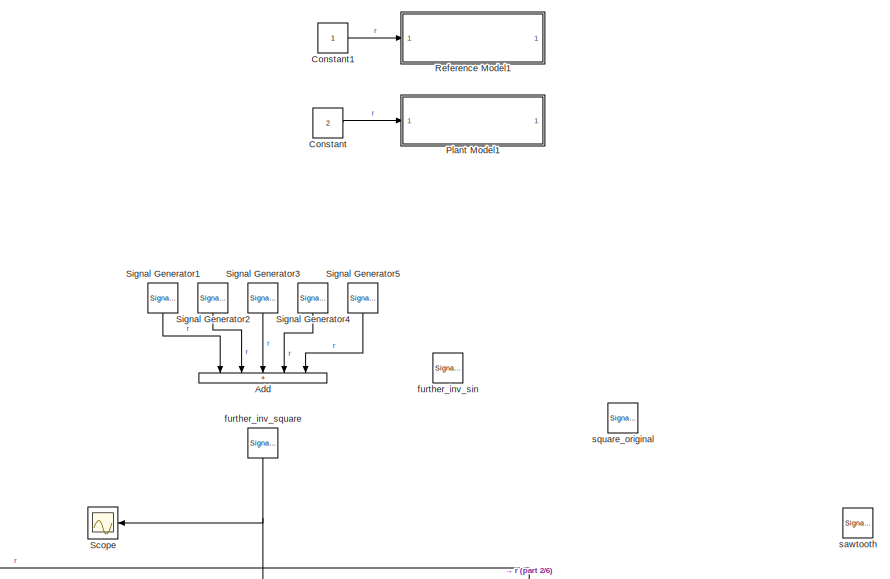
[diagram: root canvas - part 1/6, top left region]
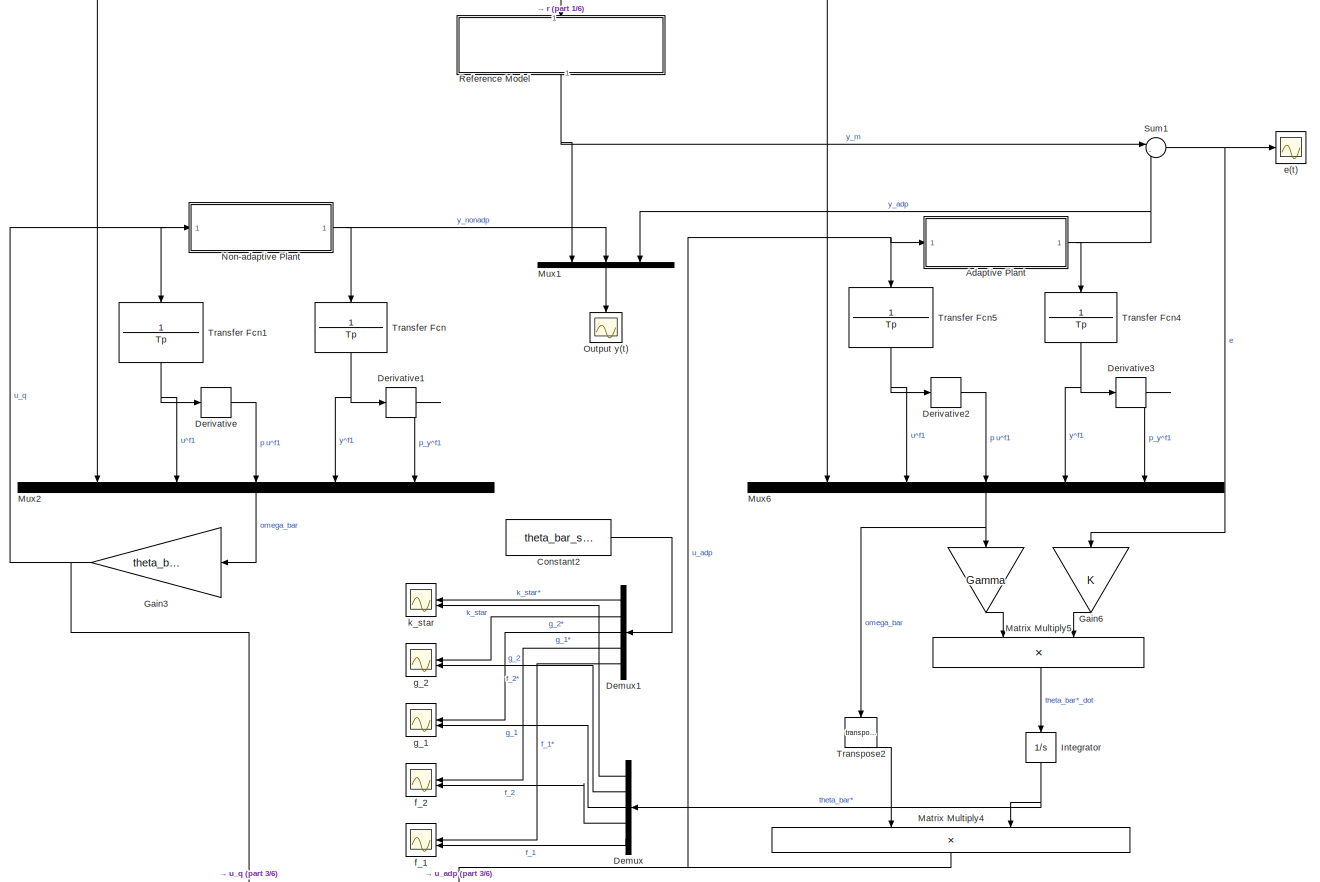
[diagram: root canvas - part 2/6, top left region]
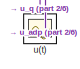
[diagram: root canvas - part 3/6, middle left region]
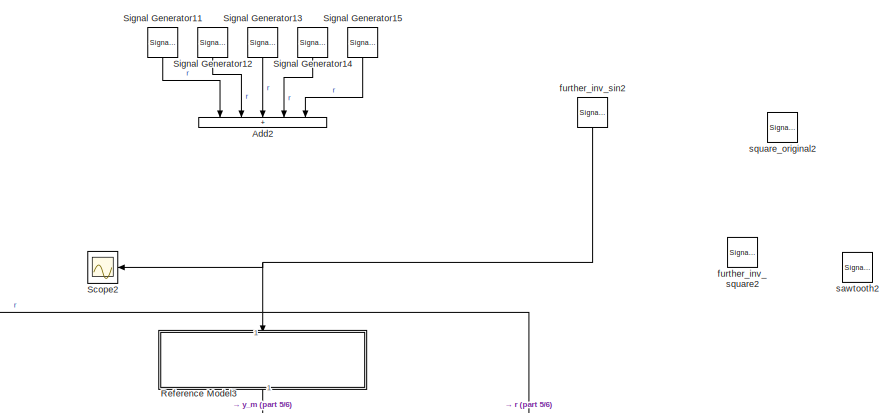
[diagram: root canvas - part 4/6, middle right region]
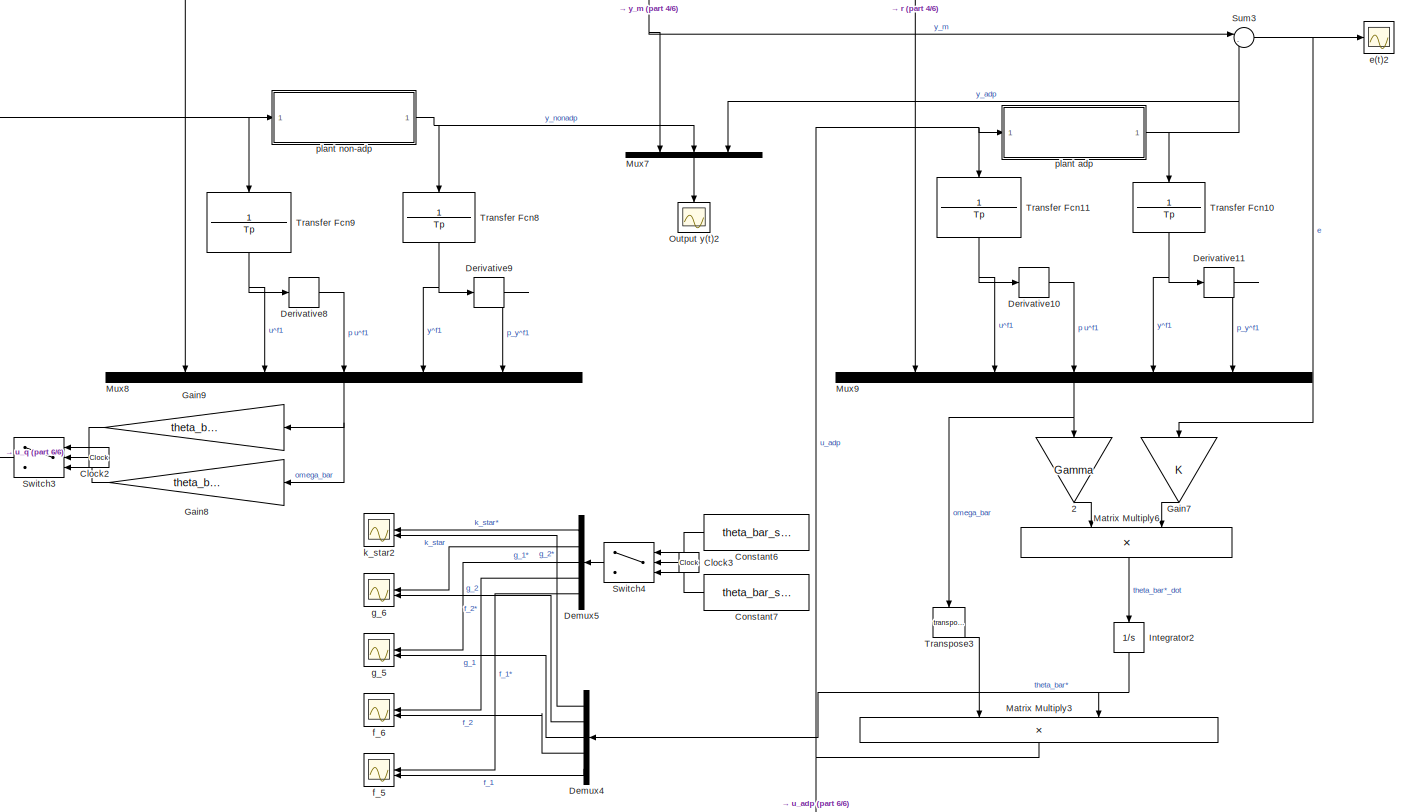
[diagram: root canvas - part 5/6, bottom right region]
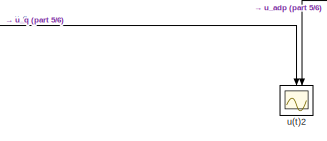
[diagram: root canvas - part 6/6, bottom center region]
MODEL slx_bb5ae10be6ac
KIND model
CONFIG AbsTol = auto
CONFIG EnableMultiTasking = off
CONFIG FixedStep = auto
CONFIG MaxStep = auto
CONFIG MinStep = auto
CONFIG RelTol = 1e-3
CONFIG SampleTimeConstraint = Unconstrained
CONFIG SolverName = VariableStepAuto
CONFIG StartTime = 0.0
CONFIG StopTime = 400
BLOCK [Gain]  
  Commented = on
  Gain = Gamma
  Multiplication = Matrix(K*u)
  NameLocation = left
BLOCK [Gain]  2
  Gain = Gamma
  Multiplication = Matrix(K*u)
  NameLocation = left
BLOCK [ModelReference] Adaptive Plant
  Commented = on
  ModelNameDialog = plant_adaptive.slx
  ModelReferenceVersion = 2.0
BLOCK [Sum] Add
  Commented = on
  IconShape = rectangular
  Inputs = +++++
  NameLocation = left
BLOCK [Sum] Add2
  IconShape = rectangular
  Inputs = +++++
  NameLocation = left
BLOCK [Clock] Clock2
  NameLocation = top
BLOCK [Clock] Clock3
  NameLocation = top
BLOCK [Constant] Constant
  Commented = on
  Value = 2
BLOCK [Constant] Constant1
  Commented = on
BLOCK [Constant] Constant2
  Commented = on
  Value = theta_bar_star
BLOCK [Constant] Constant6
  NameLocation = top
  Value = theta_bar_star_new
BLOCK [Constant] Constant7
  NameLocation = top
  Value = theta_bar_star
BLOCK [Demux] Demux
  Commented = on
  NameLocation = top
  Outputs = 5
BLOCK [Demux] Demux1
  Commented = on
  NameLocation = top
  Outputs = 5
BLOCK [Demux] Demux4
  NameLocation = top
  Outputs = 5
BLOCK [Demux] Demux5
  NameLocation = top
  Outputs = 5
BLOCK [Derivative] Derivative
  Commented = on
BLOCK [Derivative] Derivative1
  Commented = on
BLOCK [Derivative] Derivative10
BLOCK [Derivative] Derivative11
BLOCK [Derivative] Derivative2
  Commented = on
BLOCK [Derivative] Derivative3
  Commented = on
BLOCK [Derivative] Derivative8
BLOCK [Derivative] Derivative9
BLOCK [Gain] Gain3
  Commented = on
  Gain = theta_bar_star
  Multiplication = Matrix(K*u) (u vector)
  NameLocation = top
BLOCK [Gain] Gain6
  Commented = on
  NameLocation = left
BLOCK [Gain] Gain7
  NameLocation = left
BLOCK [Gain] Gain8
  Gain = theta_bar_star
  Multiplication = Matrix(K*u) (u vector)
  NameLocation = top
BLOCK [Gain] Gain9
  Gain = theta_bar_star_new
  Multiplication = Matrix(K*u) (u vector)
  NameLocation = top
BLOCK [Integrator] Integrator
  Commented = on
  NameLocation = left
BLOCK [Integrator] Integrator2
  NameLocation = left
BLOCK [Product] Matrix Multiply3
  Multiplication = Matrix(*)
  NameLocation = left
BLOCK [Product] Matrix Multiply4
  Commented = on
  Multiplication = Matrix(*)
  NameLocation = left
BLOCK [Product] Matrix Multiply5
  Commented = on
  Multiplication = Matrix(*)
  NameLocation = left
BLOCK [Product] Matrix Multiply6
  Multiplication = Matrix(*)
  NameLocation = left
BLOCK [Mux] Mux1
  Commented = on
  DisplayOption = bar
  Inputs = 3
  NameLocation = left
BLOCK [Mux] Mux2
  Commented = on
  DisplayOption = bar
  Inputs = 5
  NameLocation = left
BLOCK [Mux] Mux6
  Commented = on
  DisplayOption = bar
  Inputs = 5
  NameLocation = left
BLOCK [Mux] Mux7
  DisplayOption = bar
  Inputs = 3
  NameLocation = left
BLOCK [Mux] Mux8
  DisplayOption = bar
  Inputs = 5
  NameLocation = left
BLOCK [Mux] Mux9
  DisplayOption = bar
  Inputs = 5
  NameLocation = left
BLOCK [ModelReference] Non-adaptive Plant
  Commented = on
  ModelNameDialog = plant_nonadaptive.slx
  ModelReferenceVersion = 1.4
BLOCK [Scope] Output y(t)
  Commented = on
  Floating = off
  NameLocation = left
  NumInputPorts = 1
  ScopeSpecificationString = Simulink.scopes.TimeScopeBlockCfg('CurrentConfiguration', extmgr.ConfigurationSet(extmgr.Configuration('Core','General UI',true),extmgr.Configuration('Core','Source UI',true),extmgr.Configuration('Sources','WiredSimulink',true,'DataLoggingVariableName','ScopeData1'),extmgr.Configuration('Visuals','Time Domain',true,'SerializedDisplays',{struct('MinYLimReal','-12.5252','MaxYLimReal','12.54426','YLa...<+1632ch>
BLOCK [Scope] Output y(t)2
  Floating = off
  NameLocation = left
  NumInputPorts = 1
  ScopeSpecificationString = Simulink.scopes.TimeScopeBlockCfg('CurrentConfiguration', extmgr.ConfigurationSet(extmgr.Configuration('Core','General UI',true),extmgr.Configuration('Core','Source UI',true),extmgr.Configuration('Sources','WiredSimulink',true,'DataLoggingVariableName','ScopeData1'),extmgr.Configuration('Visuals','Time Domain',true,'SerializedDisplays',{struct('MinYLimReal','-1183.46372','MaxYLimReal','1068.27295'...<+1962ch>
BLOCK [ModelReference] Plant Model1
  Commented = on
  ModelNameDialog = plant_model.slx
  ModelReferenceVersion = 1.14
BLOCK [ModelReference] Reference Model
  Commented = on
  ModelNameDialog = reference_model.slx
  ModelReferenceVersion = 1.13
  NameLocation = left
BLOCK [ModelReference] Reference Model1
  Commented = on
  ModelNameDialog = reference_model.slx
  ModelReferenceVersion = 1.13
BLOCK [ModelReference] Reference Model3
  ModelNameDialog = reference_model.slx
  ModelReferenceVersion = 1.13
  NameLocation = left
BLOCK [Scope] Scope
  Commented = on
  Floating = off
  NameLocation = top
  NumInputPorts = 1
  ScopeSpecificationString = Simulink.scopes.TimeScopeBlockCfg('CurrentConfiguration', extmgr.ConfigurationSet(extmgr.Configuration('Core','General UI',true),extmgr.Configuration('Core','Source UI',true),extmgr.Configuration('Sources','WiredSimulink',true,'DataLoggingVariableName','ScopeData2'),extmgr.Configuration('Visuals','Time Domain',true,'SerializedDisplays',{struct('MinYLimReal','-1.25','MaxYLimReal','1.25','YLabelReal...<+1506ch>
BLOCK [Scope] Scope2
  Floating = off
  NameLocation = top
  NumInputPorts = 1
  ScopeSpecificationString = Simulink.scopes.TimeScopeBlockCfg('CurrentConfiguration', extmgr.ConfigurationSet(extmgr.Configuration('Core','General UI',true),extmgr.Configuration('Core','Source UI',true),extmgr.Configuration('Sources','WiredSimulink',true,'DataLoggingVariableName','ScopeData2'),extmgr.Configuration('Visuals','Time Domain',true,'SerializedDisplays',{struct('MinYLimReal','-1.25','MaxYLimReal','1.25','YLabelReal...<+1506ch>
BLOCK [SignalGenerator] Signal Generator1
  Commented = on
  NameLocation = left
  Units = rad/sec
BLOCK [SignalGenerator] Signal Generator11
  NameLocation = left
  Units = rad/sec
BLOCK [SignalGenerator] Signal Generator12
  Amplitude = 2
  Frequency = 0.5
  NameLocation = left
  Units = rad/sec
BLOCK [SignalGenerator] Signal Generator13
  Amplitude = 3
  Frequency = 1.5
  Units = rad/sec
BLOCK [SignalGenerator] Signal Generator14
  Amplitude = 4
  Frequency = 2
  NameLocation = left
  Units = rad/sec
BLOCK [SignalGenerator] Signal Generator15
  Amplitude = 5
  Frequency = 0.25
  NameLocation = left
  Units = rad/sec
BLOCK [SignalGenerator] Signal Generator2
  Amplitude = 2
  Commented = on
  Frequency = 0.5
  NameLocation = left
  Units = rad/sec
BLOCK [SignalGenerator] Signal Generator3
  Amplitude = 3
  Commented = on
  Frequency = 1.5
  Units = rad/sec
BLOCK [SignalGenerator] Signal Generator4
  Amplitude = 4
  Commented = on
  Frequency = 2
  NameLocation = left
  Units = rad/sec
BLOCK [SignalGenerator] Signal Generator5
  Amplitude = 5
  Commented = on
  Frequency = 0.25
  NameLocation = left
  Units = rad/sec
BLOCK [Sum] Sum1
  Commented = on
  Inputs = |-+
BLOCK [Sum] Sum3
  Inputs = |-+
BLOCK [Switch] Switch3
  InputSameDT = off
  NameLocation = top
  SaturateOnIntegerOverflow = off
  Threshold = 100
BLOCK [Switch] Switch4
  InputSameDT = off
  NameLocation = top
  SaturateOnIntegerOverflow = off
  Threshold = 100
BLOCK [TransferFcn] Transfer Fcn
  Commented = on
  Denominator = Tp
  NameLocation = left
  Numerator = 1
BLOCK [TransferFcn] Transfer Fcn1
  Commented = on
  Denominator = Tp
  NameLocation = left
  Numerator = 1
BLOCK [TransferFcn] Transfer Fcn10
  Denominator = Tp
  NameLocation = left
  Numerator = 1
BLOCK [TransferFcn] Transfer Fcn11
  Denominator = Tp
  NameLocation = left
  Numerator = 1
BLOCK [TransferFcn] Transfer Fcn4
  Commented = on
  Denominator = Tp
  NameLocation = left
  Numerator = 1
BLOCK [TransferFcn] Transfer Fcn5
  Commented = on
  Denominator = Tp
  NameLocation = left
  Numerator = 1
BLOCK [TransferFcn] Transfer Fcn8
  Denominator = Tp
  NameLocation = left
  Numerator = 1
BLOCK [TransferFcn] Transfer Fcn9
  Denominator = Tp
  NameLocation = left
  Numerator = 1
BLOCK [Math] Transpose2
  Commented = on
  NameLocation = left
  Operator = transpose
BLOCK [Math] Transpose3
  NameLocation = left
  Operator = transpose
BLOCK [Scope] e(t)
  Commented = on
  Floating = off
  NumInputPorts = 1
  ScopeSpecificationString = Simulink.scopes.TimeScopeBlockCfg('CurrentConfiguration', extmgr.ConfigurationSet(extmgr.Configuration('Core','General UI',true),extmgr.Configuration('Core','Source UI',true),extmgr.Configuration('Sources','WiredSimulink',true,'DataLoggingVariableName','ScopeData2'),extmgr.Configuration('Visuals','Time Domain',true,'SerializedDisplays',{struct('MinYLimReal','-0.15809','MaxYLimReal','0.16153','YLab...<+1493ch>
BLOCK [Scope] e(t)2
  Floating = off
  NumInputPorts = 1
  ScopeSpecificationString = Simulink.scopes.TimeScopeBlockCfg('CurrentConfiguration', extmgr.ConfigurationSet(extmgr.Configuration('Core','General UI',true),extmgr.Configuration('Core','Source UI',true),extmgr.Configuration('Sources','WiredSimulink',true,'DataLoggingVariableName','ScopeData3'),extmgr.Configuration('Visuals','Time Domain',true,'SerializedDisplays',{struct('MinYLimReal','-24.12609','MaxYLimReal','19.38304','YL...<+1525ch>
BLOCK [Scope] f_1
  Commented = on
  Floating = off
  NameLocation = top
  NumInputPorts = 2
  ScopeSpecificationString = Simulink.scopes.TimeScopeBlockCfg('CurrentConfiguration', extmgr.ConfigurationSet(extmgr.Configuration('Core','General UI',true),extmgr.Configuration('Core','Source UI',true),extmgr.Configuration('Sources','WiredSimulink',true,'DataLoggingVariableName','ScopeData9'),extmgr.Configuration('Visuals','Time Domain',true,'SerializedDisplays',{struct('MinYLimReal','-4.88886','MaxYLimReal','2.30008','YLab...<+1483ch>
BLOCK [Scope] f_2
  Commented = on
  Floating = off
  NameLocation = top
  NumInputPorts = 2
  ScopeSpecificationString = Simulink.scopes.TimeScopeBlockCfg('CurrentConfiguration', extmgr.ConfigurationSet(extmgr.Configuration('Core','General UI',true),extmgr.Configuration('Core','Source UI',true),extmgr.Configuration('Sources','WiredSimulink',true,'DataLoggingVariableName','ScopeData8'),extmgr.Configuration('Visuals','Time Domain',true,'SerializedDisplays',{struct('MinYLimReal','-1.62554','MaxYLimReal','4.23164','YLab...<+1483ch>
BLOCK [Scope] f_5
  Floating = off
  NameLocation = top
  NumInputPorts = 2
  ScopeSpecificationString = Simulink.scopes.TimeScopeBlockCfg('CurrentConfiguration', extmgr.ConfigurationSet(extmgr.Configuration('Core','General UI',true),extmgr.Configuration('Core','Source UI',true),extmgr.Configuration('Sources','WiredSimulink',true,'DataLoggingVariableName','ScopeData4'),extmgr.Configuration('Visuals','Time Domain',true,'SerializedDisplays',{struct('MinYLimReal','-121.00289','MaxYLimReal','209.11143','...<+1774ch>
BLOCK [Scope] f_6
  Floating = off
  NameLocation = top
  NumInputPorts = 2
  ScopeSpecificationString = Simulink.scopes.TimeScopeBlockCfg('CurrentConfiguration', extmgr.ConfigurationSet(extmgr.Configuration('Core','General UI',true),extmgr.Configuration('Core','Source UI',true),extmgr.Configuration('Sources','WiredSimulink',true,'DataLoggingVariableName','ScopeData5'),extmgr.Configuration('Visuals','Time Domain',true,'SerializedDisplays',{struct('MinYLimReal','-9.27529','MaxYLimReal','82.08009','YLa...<+1764ch>
BLOCK [SignalGenerator] further_inv_sin
  Amplitude = 10
  Commented = on
  Frequency = 0.5
  NameLocation = left
  Units = rad/sec
BLOCK [SignalGenerator] further_inv_sin2
  Amplitude = 10
  Frequency = 0.5
  NameLocation = left
  Units = rad/sec
BLOCK [SignalGenerator] further_inv_square
  Amplitude = 10
  Commented = on
  Frequency = 0.5
  NameLocation = left
  Units = rad/sec
  WaveForm = square
BLOCK [SignalGenerator] further_inv_square2
  Amplitude = 10
  Frequency = 0.5
  NameLocation = left
  Units = rad/sec
  WaveForm = square
BLOCK [Scope] g_1
  Commented = on
  Floating = off
  NameLocation = top
  NumInputPorts = 2
  ScopeSpecificationString = Simulink.scopes.TimeScopeBlockCfg('CurrentConfiguration', extmgr.ConfigurationSet(extmgr.Configuration('Core','General UI',true),extmgr.Configuration('Core','Source UI',true),extmgr.Configuration('Sources','WiredSimulink',true,'DataLoggingVariableName','ScopeData7'),extmgr.Configuration('Visuals','Time Domain',true,'SerializedDisplays',{struct('MinYLimReal','-8.86199','MaxYLimReal','1.99977','YLab...<+1528ch>
BLOCK [Scope] g_2
  Commented = on
  Floating = off
  NameLocation = top
  NumInputPorts = 2
  ScopeSpecificationString = Simulink.scopes.TimeScopeBlockCfg('CurrentConfiguration', extmgr.ConfigurationSet(extmgr.Configuration('Core','General UI',true),extmgr.Configuration('Core','Source UI',true),extmgr.Configuration('Sources','WiredSimulink',true,'DataLoggingVariableName','ScopeData6'),extmgr.Configuration('Visuals','Time Domain',true,'SerializedDisplays',{struct('MinYLimReal','-3.34149','MaxYLimReal','3.11944','YLab...<+1483ch>
BLOCK [Scope] g_5
  Floating = off
  NameLocation = top
  NumInputPorts = 2
  ScopeSpecificationString = Simulink.scopes.TimeScopeBlockCfg('CurrentConfiguration', extmgr.ConfigurationSet(extmgr.Configuration('Core','General UI',true),extmgr.Configuration('Core','Source UI',true),extmgr.Configuration('Sources','WiredSimulink',true,'DataLoggingVariableName','ScopeData6'),extmgr.Configuration('Visuals','Time Domain',true,'SerializedDisplays',{struct('MinYLimReal','-470.76499','MaxYLimReal','386.04657','...<+1774ch>
BLOCK [Scope] g_6
  Floating = off
  NameLocation = top
  NumInputPorts = 2
  ScopeSpecificationString = Simulink.scopes.TimeScopeBlockCfg('CurrentConfiguration', extmgr.ConfigurationSet(extmgr.Configuration('Core','General UI',true),extmgr.Configuration('Core','Source UI',true),extmgr.Configuration('Sources','WiredSimulink',true,'DataLoggingVariableName','ScopeData7'),extmgr.Configuration('Visuals','Time Domain',true,'SerializedDisplays',{struct('MinYLimReal','-456.60845','MaxYLimReal','269.91495','...<+1774ch>
BLOCK [Scope] k_star
  Commented = on
  Floating = off
  NameLocation = top
  NumInputPorts = 2
  ScopeSpecificationString = Simulink.scopes.TimeScopeBlockCfg('CurrentConfiguration', extmgr.ConfigurationSet(extmgr.Configuration('Core','General UI',true),extmgr.Configuration('Core','Source UI',true),extmgr.Configuration('Sources','WiredSimulink',true,'DataLoggingVariableName','ScopeData5'),extmgr.Configuration('Visuals','Time Domain',true,'SerializedDisplays',{struct('MinYLimReal','-11.03293','MaxYLimReal','1.95881','YLa...<+1493ch>
BLOCK [Scope] k_star2
  Floating = off
  NameLocation = top
  NumInputPorts = 2
  ScopeSpecificationString = Simulink.scopes.TimeScopeBlockCfg('CurrentConfiguration', extmgr.ConfigurationSet(extmgr.Configuration('Core','General UI',true),extmgr.Configuration('Core','Source UI',true),extmgr.Configuration('Sources','WiredSimulink',true,'DataLoggingVariableName','ScopeData8'),extmgr.Configuration('Visuals','Time Domain',true,'SerializedDisplays',{struct('MinYLimReal','-173.34956','MaxYLimReal','312.89381','...<+1780ch>
BLOCK [ModelReference] plant adp
  ModelNameDialog = plant_adaptive_switching.slx
  ModelReferenceVersion = 1.8
BLOCK [ModelReference] plant non-adp
  ModelNameDialog = plant_adaptive_switching.slx
  ModelReferenceVersion = 1.8
BLOCK [SignalGenerator] sawtooth
  Amplitude = 10
  Commented = on
  Frequency = 0.5
  NameLocation = left
  Units = rad/sec
  WaveForm = sawtooth
BLOCK [SignalGenerator] sawtooth2
  Amplitude = 10
  Frequency = 0.5
  NameLocation = left
  Units = rad/sec
  WaveForm = sawtooth
BLOCK [SignalGenerator] square_original
  Commented = on
  Frequency = 0.1
  NameLocation = left
  Units = rad/sec
  WaveForm = square
BLOCK [SignalGenerator] square_original2
  Frequency = 0.1
  NameLocation = left
  Units = rad/sec
  WaveForm = square
BLOCK [Scope] u(t)
  Commented = on
  Floating = off
  NameLocation = left
  NumInputPorts = 2
  ScopeSpecificationString = Simulink.scopes.TimeScopeBlockCfg('CurrentConfiguration', extmgr.ConfigurationSet(extmgr.Configuration('Core','General UI',true),extmgr.Configuration('Core','Source UI',true),extmgr.Configuration('Sources','WiredSimulink',true,'DataLoggingVariableName','ScopeData4'),extmgr.Configuration('Visuals','Time Domain',true,'SerializedDisplays',{struct('MinYLimReal','-71.70441','MaxYLimReal','56.00398','YL...<+1536ch>
BLOCK [Scope] u(t)2
  Floating = off
  NameLocation = left
  NumInputPorts = 2
  ScopeSpecificationString = Simulink.scopes.TimeScopeBlockCfg('CurrentConfiguration', extmgr.ConfigurationSet(extmgr.Configuration('Core','General UI',true),extmgr.Configuration('Core','Source UI',true),extmgr.Configuration('Sources','WiredSimulink',true,'DataLoggingVariableName','ScopeData9'),extmgr.Configuration('Visuals','Time Domain',true,'SerializedDisplays',{struct('MinYLimReal','-6822.86036','MaxYLimReal','6442.63399'...<+1715ch>
LINE  2:1 -> Matrix Multiply6:1
LINE  :1 -> Matrix Multiply5:1
NET Adaptive Plant:1 -> Mux1:3, Sum1:2, Transfer Fcn4:1
LINE Clock2:1 -> Switch3:2
LINE Clock3:1 -> Switch4:2
LINE Constant1:1 -> Reference Model1:1
LINE Constant2:1 -> Demux1:1
LINE Constant6:1 -> Switch4:1
LINE Constant7:1 -> Switch4:3
LINE Constant:1 -> Plant Model1:1
LINE Demux1:1 -> k_star:1
LINE Demux1:2 -> g_2:1
LINE Demux1:3 -> g_1:1
LINE Demux1:4 -> f_2:1
LINE Demux1:5 -> f_1:1
LINE Demux4:1 -> k_star2:2
LINE Demux4:2 -> g_6:2
LINE Demux4:3 -> g_5:2
LINE Demux4:4 -> f_6:2
LINE Demux4:5 -> f_5:2
LINE Demux5:1 -> k_star2:1
LINE Demux5:2 -> g_6:1
LINE Demux5:3 -> g_5:1
LINE Demux5:4 -> f_6:1
LINE Demux5:5 -> f_5:1
LINE Demux:1 -> k_star:2
LINE Demux:2 -> g_2:2
LINE Demux:3 -> g_1:2
LINE Demux:4 -> f_2:2
LINE Demux:5 -> f_1:2
LINE Derivative10:1 -> Mux9:3
LINE Derivative11:1 -> Mux9:5
LINE Derivative1:1 -> Mux2:5
LINE Derivative2:1 -> Mux6:3
LINE Derivative3:1 -> Mux6:5
LINE Derivative8:1 -> Mux8:3
LINE Derivative9:1 -> Mux8:5
LINE Derivative:1 -> Mux2:3
NET Gain3:1 -> Non-adaptive Plant:1, Transfer Fcn1:1, u(t):1
LINE Gain6:1 -> Matrix Multiply5:2
LINE Gain7:1 -> Matrix Multiply6:2
LINE Gain8:1 -> Switch3:3
LINE Gain9:1 -> Switch3:1
NET Integrator2:1 -> Demux4:1, Matrix Multiply3:2
NET Integrator:1 -> Demux:1, Matrix Multiply4:2
NET Matrix Multiply3:1 -> Transfer Fcn11:1, plant adp:1, u(t)2:2
NET Matrix Multiply4:1 -> Adaptive Plant:1, Transfer Fcn5:1, u(t):2
LINE Matrix Multiply5:1 -> Integrator:1
LINE Matrix Multiply6:1 -> Integrator2:1
LINE Mux1:1 -> Output y(t):1
LINE Mux2:1 -> Gain3:1
NET Mux6:1 ->  :1, Transpose2:1
LINE Mux7:1 -> Output y(t)2:1
NET Mux8:1 -> Gain8:1, Gain9:1
NET Mux9:1 ->  2:1, Transpose3:1
NET Non-adaptive Plant:1 -> Mux1:2, Transfer Fcn:1
NET Reference Model3:1 -> Mux7:1, Sum3:1
NET Reference Model:1 -> Mux1:1, Sum1:1
LINE Signal Generator11:1 -> Add2:1
LINE Signal Generator12:1 -> Add2:2
LINE Signal Generator13:1 -> Add2:3
LINE Signal Generator14:1 -> Add2:4
LINE Signal Generator15:1 -> Add2:5
LINE Signal Generator1:1 -> Add:1
LINE Signal Generator2:1 -> Add:2
LINE Signal Generator3:1 -> Add:3
LINE Signal Generator4:1 -> Add:4
LINE Signal Generator5:1 -> Add:5
NET Sum1:1 -> Gain6:1, e(t):1
NET Sum3:1 -> Gain7:1, e(t)2:1
NET Switch3:1 -> Transfer Fcn9:1, plant non-adp:1, u(t)2:1
LINE Switch4:1 -> Demux5:1
NET Transfer Fcn10:1 -> Derivative11:1, Mux9:4
NET Transfer Fcn11:1 -> Derivative10:1, Mux9:2
NET Transfer Fcn1:1 -> Derivative:1, Mux2:2
NET Transfer Fcn4:1 -> Derivative3:1, Mux6:4
NET Transfer Fcn5:1 -> Derivative2:1, Mux6:2
NET Transfer Fcn8:1 -> Derivative9:1, Mux8:4
NET Transfer Fcn9:1 -> Derivative8:1, Mux8:2
NET Transfer Fcn:1 -> Derivative1:1, Mux2:4
LINE Transpose2:1 -> Matrix Multiply4:1
LINE Transpose3:1 -> Matrix Multiply3:1
NET further_inv_sin2:1 -> Mux8:1, Mux9:1, Reference Model3:1, Scope2:1
NET further_inv_square:1 -> Mux2:1, Mux6:1, Reference Model:1, Scope:1
NET plant adp:1 -> Mux7:3, Sum3:2, Transfer Fcn10:1
NET plant non-adp:1 -> Mux7:2, Transfer Fcn8:1
note: NET lines group one-source signal fan-out (src -> all destinations, sorted); 1:1 wires keep LINE
